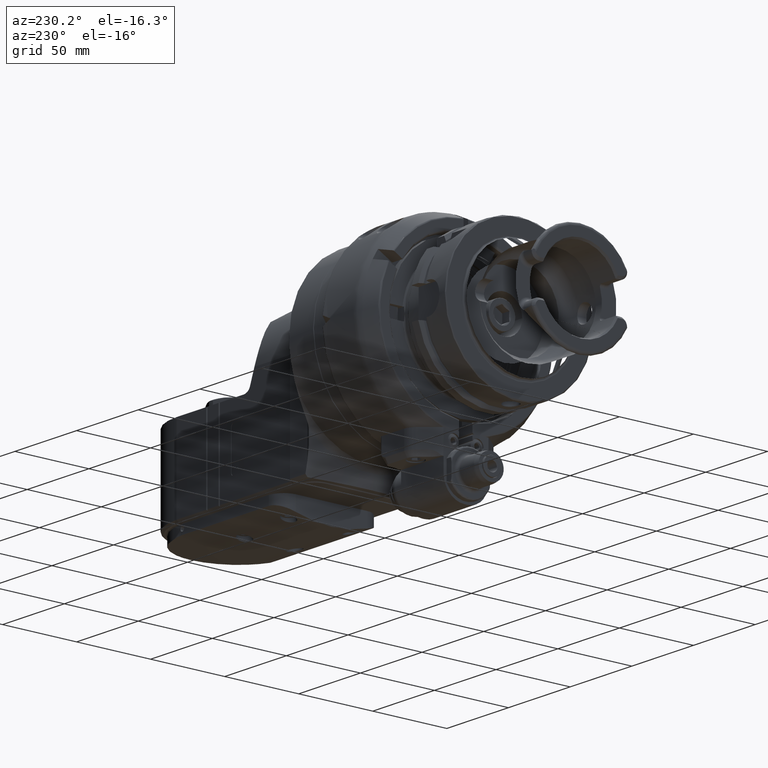
[diagram: clean part render]
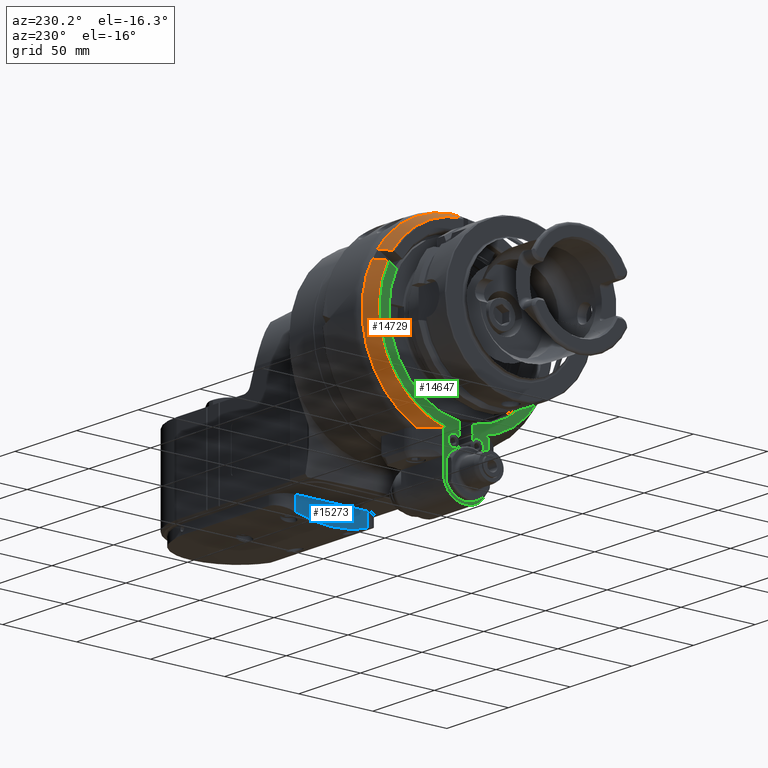
[diagram: same view with three faces highlighted in distinct colors, each labeled with its STEP entity id]
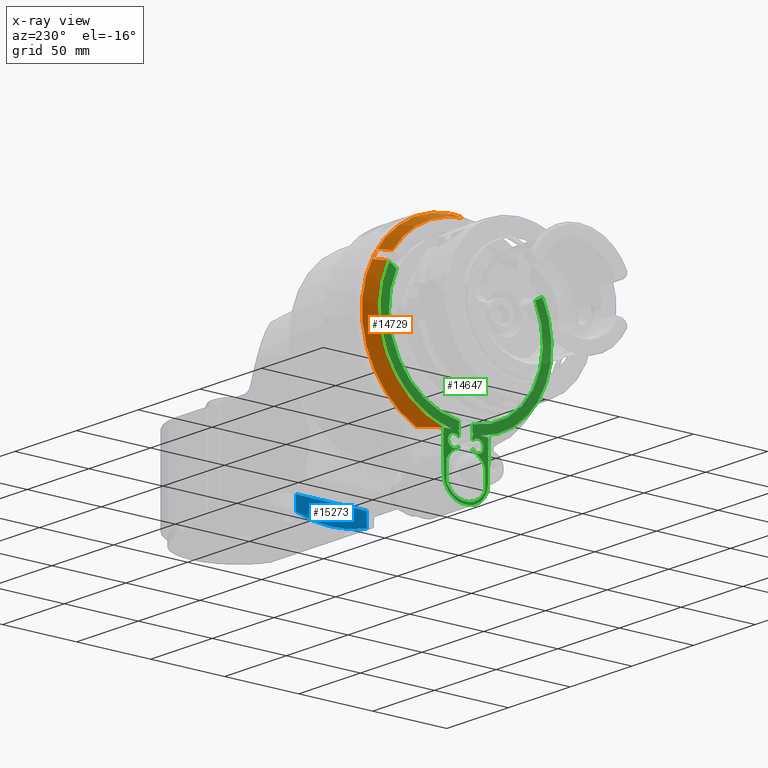
[diagram: x-ray of the same camera — body ghosted, the three highlighted faces saturated]
A machine part, auxiliary view with three faces highlighted in distinct colors.
The next image is the same camera in x-ray (body ghosted, the three faces saturated) — at least one of them is partly hidden behind the body in this view.
Their STEP definitions:

[orange] entity #14729 — the highlighted conical surface has half-angle 25 deg.
#106=B_SPLINE_CURVE_WITH_KNOTS('',3,(#23859,#23860,#23861,#23862,#23863,
#23864,#23865,#23866,#23867,#23868),.UNSPECIFIED.,.F.,.F.,(4,3,3,4),(1.02730984590457E-5,
0.3333333333333,0.6666666666667,1.),.UNSPECIFIED.);
#107=B_SPLINE_CURVE_WITH_KNOTS('',3,(#23876,#23877,#23878,#23879,#23880,
#23881,#23882,#23883,#23884,#23885),.UNSPECIFIED.,.F.,.F.,(4,1,1,1,1,1,
1,4),(0.,0.1428571428571,0.2857142857143,0.4285714285714,0.5714285714286,
0.7142857142857,0.8571428571429,1.),.UNSPECIFIED.);
#108=B_SPLINE_CURVE_WITH_KNOTS('',3,(#23888,#23889,#23890,#23891,#23892,
#23893,#23894,#23895,#23896,#23897),.UNSPECIFIED.,.F.,.F.,(4,3,3,4),(0.,
0.3333333333333,0.6666666666667,0.999989987187484),.UNSPECIFIED.);
#109=B_SPLINE_CURVE_WITH_KNOTS('',3,(#23901,#23902,#23903,#23904,#23905,
#23906,#23907,#23908,#23909,#23910),.UNSPECIFIED.,.F.,.F.,(4,3,3,4),(1.71057939529583E-6,
0.3333333333333,0.6666666666667,1.),.UNSPECIFIED.);
#110=B_SPLINE_CURVE_WITH_KNOTS('',3,(#23913,#23914,#23915,#23916,#23917,
#23918,#23919),.UNSPECIFIED.,.F.,.F.,(4,1,1,1,4),(0.,0.25,0.5,0.75,1.),
 .UNSPECIFIED.);
#417=CONICAL_SURFACE('',#15821,60.72877327237,0.436332312998582);
#3810=FACE_OUTER_BOUND('',#4674,.T.);
#4674=EDGE_LOOP('',(#10779,#10780,#10781,#10782,#10783,#10784,#10785,#10786,
#10787));
#5687=CIRCLE('',#15817,62.46361509432);
#5688=CIRCLE('',#15822,58.76923752623);
#5689=CIRCLE('',#15823,58.76923752623);
#5690=CIRCLE('',#15824,62.68830901851);
#6514=VERTEX_POINT('',#23842);
#6520=VERTEX_POINT('',#23854);
#6521=VERTEX_POINT('',#23858);
#6523=VERTEX_POINT('',#23874);
#6524=VERTEX_POINT('',#23875);
#6525=VERTEX_POINT('',#23887);
#6526=VERTEX_POINT('',#23898);
#6527=VERTEX_POINT('',#23900);
#6528=VERTEX_POINT('',#23911);
#8204=EDGE_CURVE('',#6520,#6514,#5687,.T.);
#8205=EDGE_CURVE('',#6521,#6514,#106,.T.);
#8209=EDGE_CURVE('',#6523,#6524,#107,.T.);
#8210=EDGE_CURVE('',#6521,#6523,#5688,.T.);
#8211=EDGE_CURVE('',#6520,#6525,#108,.T.);
#8212=EDGE_CURVE('',#6526,#6525,#5689,.T.);
#8213=EDGE_CURVE('',#6526,#6527,#109,.T.);
#8214=EDGE_CURVE('',#6528,#6527,#5690,.T.);
#8215=EDGE_CURVE('',#6524,#6528,#110,.T.);
#10779=ORIENTED_EDGE('',*,*,#8209,.F.);
#10780=ORIENTED_EDGE('',*,*,#8210,.F.);
#10781=ORIENTED_EDGE('',*,*,#8205,.T.);
#10782=ORIENTED_EDGE('',*,*,#8204,.F.);
#10783=ORIENTED_EDGE('',*,*,#8211,.T.);
#10784=ORIENTED_EDGE('',*,*,#8212,.F.);
#10785=ORIENTED_EDGE('',*,*,#8213,.T.);
#10786=ORIENTED_EDGE('',*,*,#8214,.F.);
#10787=ORIENTED_EDGE('',*,*,#8215,.F.);
#14729=ADVANCED_FACE('',(#3810),#417,.T.);
#15817=AXIS2_PLACEMENT_3D('',#23856,#17927,#17928);
#15821=AXIS2_PLACEMENT_3D('',#23873,#17936,#17937);
#15822=AXIS2_PLACEMENT_3D('',#23886,#17938,#17939);
#15823=AXIS2_PLACEMENT_3D('',#23899,#17940,#17941);
#15824=AXIS2_PLACEMENT_3D('',#23912,#17942,#17943);
#17927=DIRECTION('center_axis',(0.,1.,0.));
#17928=DIRECTION('ref_axis',(0.836648514801896,0.,0.547740141563298));
#17936=DIRECTION('center_axis',(0.,-1.,0.));
#17937=DIRECTION('ref_axis',(0.,0.,1.));
#17938=DIRECTION('center_axis',(0.,1.,0.));
#17939=DIRECTION('ref_axis',(0.894265716161126,0.,0.447536399523913));
#17940=DIRECTION('center_axis',(0.,1.,0.));
#17941=DIRECTION('ref_axis',(0.025523554657049,0.,0.99967422101286));
#17942=DIRECTION('center_axis',(0.,-1.,0.));
#17943=DIRECTION('ref_axis',(0.416227625267496,0.,-0.90926044891669));
#23842=CARTESIAN_POINT('',(55.76009079782,33.99999976923,28.15165154783));
#23854=CARTESIAN_POINT('',(52.26009079782,33.99999976923,34.21382937432));
#23856=CARTESIAN_POINT('Origin',(0.,33.99999976923,0.));
#23858=CARTESIAN_POINT('',(52.5553140756384,41.9226180914408,26.3013733606339));
#23859=CARTESIAN_POINT('Ctrl Pts',(52.5553143060926,41.9226180951775,26.3013729776423));
#23860=CARTESIAN_POINT('Ctrl Pts',(52.8974984834702,41.0767839762014,26.4989331045637));
#23861=CARTESIAN_POINT('Ctrl Pts',(53.2442676749145,40.2195859070401,26.6991403905907));
#23862=CARTESIAN_POINT('Ctrl Pts',(53.5956290017407,39.3510058627919,26.9019989472166));
#23863=CARTESIAN_POINT('Ctrl Pts',(53.9470011576093,38.4823990486934,27.1048637559931));
#23864=CARTESIAN_POINT('Ctrl Pts',(54.3029657319258,37.6024095579066,27.3103799987967));
#23865=CARTESIAN_POINT('Ctrl Pts',(54.6636907338381,36.7106214450431,27.5186446757542));
#23866=CARTESIAN_POINT('Ctrl Pts',(55.0244157357503,35.8188333321799,27.7269093527117));
#23867=CARTESIAN_POINT('Ctrl Pts',(55.3899011652583,34.91524659724,27.937922463823));
#23868=CARTESIAN_POINT('Ctrl Pts',(55.7600907978184,33.99999976923,28.1516515478328));
#23873=CARTESIAN_POINT('Origin',(0.,37.72038006238,0.));
#23874=CARTESIAN_POINT('',(14.31164838353,41.92261803015,-57.00000000004));
#23875=CARTESIAN_POINT('',(21.30096755004,37.460254874,-57.));
#23876=CARTESIAN_POINT('Ctrl Pts',(14.31164838353,41.92261803015,-57.00000000004));
#23877=CARTESIAN_POINT('Ctrl Pts',(14.62398115152,41.75950652187,-57.00000000004));
#23878=CARTESIAN_POINT('Ctrl Pts',(15.25413223333,41.42036479778,-56.99999999998));
#23879=CARTESIAN_POINT('Ctrl Pts',(16.21459806052,40.87241439357,-57.));
#23880=CARTESIAN_POINT('Ctrl Pts',(17.19207343771,40.28306634611,-57.));
#23881=CARTESIAN_POINT('Ctrl Pts',(18.18765909536,39.65037991353,-57.));
#23882=CARTESIAN_POINT('Ctrl Pts',(19.20277565445,38.97208999503,-57.));
#23883=CARTESIAN_POINT('Ctrl Pts',(20.2385662681,38.24599548139,-57.));
#23884=CARTESIAN_POINT('Ctrl Pts',(20.94447306891,37.72787483307,-57.));
#23885=CARTESIAN_POINT('Ctrl Pts',(21.30096755004,37.460254874,-57.));
#23886=CARTESIAN_POINT('Origin',(0.,41.92261803097,0.));
#23887=CARTESIAN_POINT('',(49.0553145156717,41.9226180899072,32.3635504238284));
#23888=CARTESIAN_POINT('Ctrl Pts',(52.2600907978213,33.99999976923,34.2138293743178));
#23889=CARTESIAN_POINT('Ctrl Pts',(51.8900419418814,34.91489854495,34.0001815677275));
#23890=CARTESIAN_POINT('Ctrl Pts',(51.5246502883267,35.8182534533199,33.789222598188));
#23891=CARTESIAN_POINT('Ctrl Pts',(51.1639706141339,36.7099295220631,33.5809840912014));
#23892=CARTESIAN_POINT('Ctrl Pts',(50.803290939941,37.6016055908066,33.3727455842147));
#23893=CARTESIAN_POINT('Ctrl Pts',(50.4473232451099,38.4816028199234,33.1672275397811));
#23894=CARTESIAN_POINT('Ctrl Pts',(50.0959038329956,39.3503264683419,32.9643354475983));
#23895=CARTESIAN_POINT('Ctrl Pts',(49.7444949769715,40.2190240216591,32.7614494499771));
#23896=CARTESIAN_POINT('Ctrl Pts',(49.3976341304217,41.0764486715492,32.5611892468501));
#23897=CARTESIAN_POINT('Ctrl Pts',(49.0553143054036,41.9226180935379,32.3635508037268));
#23898=CARTESIAN_POINT('',(1.49999981211714,41.9226180525519,58.7500917349531));
#23899=CARTESIAN_POINT('Origin',(0.,41.92261803097,0.));
#23900=CARTESIAN_POINT('',(1.49999987294062,33.5181468910144,62.670358284432));
#23901=CARTESIAN_POINT('Ctrl Pts',(1.499999846154,41.9226180526766,58.7500917352221));
#23902=CARTESIAN_POINT('Ctrl Pts',(1.499999846154,41.0144512778658,59.1737148646847));
#23903=CARTESIAN_POINT('Ctrl Pts',(1.499999846154,40.0977525072244,59.6013148391658));
#23904=CARTESIAN_POINT('Ctrl Pts',(1.499999846154,39.1725530480269,60.0328770844715));
#23905=CARTESIAN_POINT('Ctrl Pts',(1.499999846154,38.2473488409234,60.4644415444533));
#23906=CARTESIAN_POINT('Ctrl Pts',(1.499999846154,37.3136438580166,60.8999683159267));
#23907=CARTESIAN_POINT('Ctrl Pts',(1.499999846154,36.3712601978781,61.3395404066135));
#23908=CARTESIAN_POINT('Ctrl Pts',(1.499999846154,35.4288765377399,61.7791124973001));
#23909=CARTESIAN_POINT('Ctrl Pts',(1.499999846154,34.47781420037,62.2227299072));
#23910=CARTESIAN_POINT('Ctrl Pts',(1.499999846154,33.51815168744,62.67035604754));
#23911=CARTESIAN_POINT('',(26.09260599481,33.5181420938,-57.));
#23912=CARTESIAN_POINT('Origin',(0.,33.5181420938,0.));
#23913=CARTESIAN_POINT('Ctrl Pts',(21.30096755004,37.460254874,-57.));
#23914=CARTESIAN_POINT('Ctrl Pts',(21.68063562738,37.17523852538,-57.));
#23915=CARTESIAN_POINT('Ctrl Pts',(22.44996264181,36.58431619857,-57.));
#23916=CARTESIAN_POINT('Ctrl Pts',(23.63156942239,35.63490235576,-57.));
#23917=CARTESIAN_POINT('Ctrl Pts',(24.84368618236,34.61797838814,-57.));
#23918=CARTESIAN_POINT('Ctrl Pts',(25.67298005906,33.89270147253,-57.));
#23919=CARTESIAN_POINT('Ctrl Pts',(26.09260599481,33.5181420938,-57.));

[blue] entity #15273 — the highlighted planar face has unit normal (-1, 0, 0).
#1565=LINE('',#31039,#2732);
#1568=LINE('',#31052,#2735);
#1569=LINE('',#31055,#2736);
#2732=VECTOR('',#20769,48.);
#2735=VECTOR('',#20782,9.541400527585);
#2736=VECTOR('',#20785,9.541400527591);
#3591=PLANE('',#16833);
#4354=FACE_OUTER_BOUND('',#5321,.T.);
#5321=EDGE_LOOP('',(#13848,#13849,#13850,#13851));
#6139=CIRCLE('',#16834,85.);
#7583=VERTEX_POINT('',#31037);
#7584=VERTEX_POINT('',#31038);
#7589=VERTEX_POINT('',#31051);
#7590=VERTEX_POINT('',#31053);
#9711=EDGE_CURVE('',#7583,#7584,#1565,.T.);
#9718=EDGE_CURVE('',#7589,#7583,#1568,.T.);
#9719=EDGE_CURVE('',#7589,#7590,#6139,.T.);
#9720=EDGE_CURVE('',#7584,#7590,#1569,.T.);
#13848=ORIENTED_EDGE('',*,*,#9711,.F.);
#13849=ORIENTED_EDGE('',*,*,#9718,.F.);
#13850=ORIENTED_EDGE('',*,*,#9719,.T.);
#13851=ORIENTED_EDGE('',*,*,#9720,.F.);
#15273=ADVANCED_FACE('',(#4354),#3591,.T.);
#16833=AXIS2_PLACEMENT_3D('',#31050,#20780,#20781);
#16834=AXIS2_PLACEMENT_3D('',#31054,#20783,#20784);
#20769=DIRECTION('',(0.,0.,-1.));
#20780=DIRECTION('center_axis',(-1.,0.,0.));
#20781=DIRECTION('ref_axis',(0.,0.,-1.));
#20782=DIRECTION('',(0.,-1.,0.));
#20783=DIRECTION('center_axis',(-1.,0.,0.));
#20784=DIRECTION('ref_axis',(0.,0.959310594442168,0.28235294117649));
#20785=DIRECTION('',(0.,1.,-3.596873859133E-13));
#31037=CARTESIAN_POINT('',(68.5,70.5,24.));
#31038=CARTESIAN_POINT('',(68.5,70.5,-24.));
#31039=CARTESIAN_POINT('',(68.5,70.5,24.));
#31050=CARTESIAN_POINT('Origin',(68.5,70.5,36.5));
#31051=CARTESIAN_POINT('',(68.5,80.04140052758,24.));
#31052=CARTESIAN_POINT('',(68.5,80.04140052758,24.));
#31053=CARTESIAN_POINT('',(68.5,80.04140052759,-24.));
#31054=CARTESIAN_POINT('Origin',(68.5,-1.5,0.));
#31055=CARTESIAN_POINT('',(68.5,70.5,-24.));

[green] entity #14647 — the highlighted planar face has unit normal (1, -0, 0).
#629=LINE('',#22113,#1796);
#633=LINE('',#22125,#1800);
#635=LINE('',#22132,#1802);
#636=LINE('',#22136,#1803);
#637=LINE('',#22140,#1804);
#638=LINE('',#22142,#1805);
#639=LINE('',#22146,#1806);
#640=LINE('',#22148,#1807);
#641=LINE('',#22154,#1808);
#642=LINE('',#22158,#1809);
#643=LINE('',#22162,#1810);
#644=LINE('',#22164,#1811);
#645=LINE('',#22166,#1812);
#646=LINE('',#22168,#1813);
#647=LINE('',#22170,#1814);
#648=LINE('',#22172,#1815);
#649=LINE('',#22174,#1816);
#650=LINE('',#22178,#1817);
#651=LINE('',#22181,#1818);
#652=LINE('',#22183,#1819);
#653=LINE('',#22187,#1820);
#654=LINE('',#22191,#1821);
#655=LINE('',#22197,#1822);
#656=LINE('',#22199,#1823);
#657=LINE('',#22203,#1824);
#658=LINE('',#22204,#1825);
#1796=VECTOR('',#17431,0.1128483482606);
#1800=VECTOR('',#17445,9.5);
#1802=VECTOR('',#17451,12.84523257867);
#1803=VECTOR('',#17454,12.84523257867);
#1804=VECTOR('',#17457,0.7159512479098);
#1805=VECTOR('',#17458,0.3775010008008);
#1806=VECTOR('',#17461,0.3775010008008);
#1807=VECTOR('',#17462,2.5);
#1808=VECTOR('',#17467,4.195077453973);
#1809=VECTOR('',#17470,5.87481064190873);
#1810=VECTOR('',#17473,5.157013978268);
#1811=VECTOR('',#17474,15.5);
#1812=VECTOR('',#17475,0.1128483482606);
#1813=VECTOR('',#17476,0.7629679276389);
#1814=VECTOR('',#17477,10.);
#1815=VECTOR('',#17478,10.);
#1816=VECTOR('',#17479,8.70839142844);
#1817=VECTOR('',#17482,2.);
#1818=VECTOR('',#17485,15.5);
#1819=VECTOR('',#17486,5.157013978268);
#1820=VECTOR('',#17489,5.87482370131279);
#1821=VECTOR('',#17492,4.195077453972);
#1822=VECTOR('',#17497,2.5);
#1823=VECTOR('',#17498,0.3775010008008);
#1824=VECTOR('',#17501,0.3775010008008);
#1825=VECTOR('',#17502,0.7159512479098);
#3320=PLANE('',#15633);
#3728=FACE_OUTER_BOUND('',#4579,.T.);
#4579=EDGE_LOOP('',(#10343,#10344,#10345,#10346,#10347,#10348,#10349,#10350,
#10351,#10352,#10353,#10354,#10355,#10356,#10357,#10358,#10359,#10360,#10361,
#10362,#10363,#10364,#10365,#10366,#10367,#10368,#10369,#10370,#10371,#10372,
#10373,#10374,#10375,#10376,#10377,#10378,#10379,#10380,#10381,#10382,#10383));
#5584=CIRCLE('',#15634,14.5);
#5585=CIRCLE('',#15635,14.5);
#5586=CIRCLE('',#15636,14.5);
#5587=CIRCLE('',#15637,4.);
#5588=CIRCLE('',#15638,1.);
#5589=CIRCLE('',#15639,1.);
#5590=CIRCLE('',#15640,52.);
#5591=CIRCLE('',#15641,57.86292973919);
#5592=CIRCLE('',#15642,14.);
#5593=CIRCLE('',#15643,14.);
#5594=CIRCLE('',#15644,57.86292973919);
#5595=CIRCLE('',#15645,52.);
#5596=CIRCLE('',#15646,1.);
#5597=CIRCLE('',#15647,1.);
#5598=CIRCLE('',#15648,4.);
#6347=VERTEX_POINT('',#22110);
#6348=VERTEX_POINT('',#22112);
#6351=VERTEX_POINT('',#22124);
#6352=VERTEX_POINT('',#22128);
#6353=VERTEX_POINT('',#22129);
#6354=VERTEX_POINT('',#22131);
#6355=VERTEX_POINT('',#22133);
#6356=VERTEX_POINT('',#22135);
#6357=VERTEX_POINT('',#22137);
#6358=VERTEX_POINT('',#22139);
#6359=VERTEX_POINT('',#22141);
#6360=VERTEX_POINT('',#22143);
#6361=VERTEX_POINT('',#22145);
#6362=VERTEX_POINT('',#22147);
#6363=VERTEX_POINT('',#22149);
#6364=VERTEX_POINT('',#22151);
#6365=VERTEX_POINT('',#22153);
#6366=VERTEX_POINT('',#22155);
#6367=VERTEX_POINT('',#22157);
#6368=VERTEX_POINT('',#22159);
#6369=VERTEX_POINT('',#22161);
#6370=VERTEX_POINT('',#22163);
#6371=VERTEX_POINT('',#22165);
#6372=VERTEX_POINT('',#22167);
#6373=VERTEX_POINT('',#22169);
#6374=VERTEX_POINT('',#22171);
#6375=VERTEX_POINT('',#22173);
#6376=VERTEX_POINT('',#22175);
#6377=VERTEX_POINT('',#22177);
#6378=VERTEX_POINT('',#22180);
#6379=VERTEX_POINT('',#22182);
#6380=VERTEX_POINT('',#22184);
#6381=VERTEX_POINT('',#22186);
#6382=VERTEX_POINT('',#22188);
#6383=VERTEX_POINT('',#22190);
#6384=VERTEX_POINT('',#22192);
#6385=VERTEX_POINT('',#22194);
#6386=VERTEX_POINT('',#22196);
#6387=VERTEX_POINT('',#22198);
#6388=VERTEX_POINT('',#22200);
#6389=VERTEX_POINT('',#22202);
#7955=EDGE_CURVE('',#6348,#6347,#629,.T.);
#7961=EDGE_CURVE('',#6351,#6348,#633,.T.);
#7963=EDGE_CURVE('',#6352,#6353,#5584,.T.);
#7964=EDGE_CURVE('',#6354,#6352,#635,.T.);
#7965=EDGE_CURVE('',#6355,#6354,#5585,.T.);
#7966=EDGE_CURVE('',#6356,#6355,#636,.T.);
#7967=EDGE_CURVE('',#6357,#6356,#5586,.T.);
#7968=EDGE_CURVE('',#6357,#6358,#637,.T.);
#7969=EDGE_CURVE('',#6359,#6358,#638,.T.);
#7970=EDGE_CURVE('',#6359,#6360,#5587,.T.);
#7971=EDGE_CURVE('',#6361,#6360,#639,.T.);
#7972=EDGE_CURVE('',#6361,#6362,#640,.T.);
#7973=EDGE_CURVE('',#6362,#6363,#5588,.T.);
#7974=EDGE_CURVE('',#6363,#6364,#5589,.T.);
#7975=EDGE_CURVE('',#6365,#6364,#641,.T.);
#7976=EDGE_CURVE('',#6365,#6366,#5590,.T.);
#7977=EDGE_CURVE('',#6366,#6367,#642,.T.);
#7978=EDGE_CURVE('',#6367,#6368,#5591,.T.);
#7979=EDGE_CURVE('',#6368,#6369,#643,.T.);
#7980=EDGE_CURVE('',#6370,#6369,#644,.T.);
#7981=EDGE_CURVE('',#6370,#6371,#645,.T.);
#7982=EDGE_CURVE('',#6372,#6371,#646,.T.);
#7983=EDGE_CURVE('',#6372,#6373,#647,.T.);
#7984=EDGE_CURVE('',#6373,#6374,#648,.T.);
#7985=EDGE_CURVE('',#6375,#6374,#649,.T.);
#7986=EDGE_CURVE('',#6375,#6376,#5592,.T.);
#7987=EDGE_CURVE('',#6376,#6377,#650,.T.);
#7988=EDGE_CURVE('',#6377,#6351,#5593,.T.);
#7989=EDGE_CURVE('',#6378,#6347,#651,.T.);
#7990=EDGE_CURVE('',#6379,#6378,#652,.T.);
#7991=EDGE_CURVE('',#6379,#6380,#5594,.T.);
#7992=EDGE_CURVE('',#6380,#6381,#653,.T.);
#7993=EDGE_CURVE('',#6381,#6382,#5595,.T.);
#7994=EDGE_CURVE('',#6383,#6382,#654,.T.);
#7995=EDGE_CURVE('',#6383,#6384,#5596,.T.);
#7996=EDGE_CURVE('',#6384,#6385,#5597,.T.);
#7997=EDGE_CURVE('',#6385,#6386,#655,.T.);
#7998=EDGE_CURVE('',#6387,#6386,#656,.T.);
#7999=EDGE_CURVE('',#6387,#6388,#5598,.T.);
#8000=EDGE_CURVE('',#6389,#6388,#657,.T.);
#8001=EDGE_CURVE('',#6389,#6353,#658,.T.);
#10343=ORIENTED_EDGE('',*,*,#7963,.F.);
#10344=ORIENTED_EDGE('',*,*,#7964,.F.);
#10345=ORIENTED_EDGE('',*,*,#7965,.F.);
#10346=ORIENTED_EDGE('',*,*,#7966,.F.);
#10347=ORIENTED_EDGE('',*,*,#7967,.F.);
#10348=ORIENTED_EDGE('',*,*,#7968,.T.);
#10349=ORIENTED_EDGE('',*,*,#7969,.F.);
#10350=ORIENTED_EDGE('',*,*,#7970,.T.);
#10351=ORIENTED_EDGE('',*,*,#7971,.F.);
#10352=ORIENTED_EDGE('',*,*,#7972,.T.);
#10353=ORIENTED_EDGE('',*,*,#7973,.T.);
#10354=ORIENTED_EDGE('',*,*,#7974,.T.);
#10355=ORIENTED_EDGE('',*,*,#7975,.F.);
#10356=ORIENTED_EDGE('',*,*,#7976,.T.);
#10357=ORIENTED_EDGE('',*,*,#7977,.T.);
#10358=ORIENTED_EDGE('',*,*,#7978,.T.);
#10359=ORIENTED_EDGE('',*,*,#7979,.T.);
#10360=ORIENTED_EDGE('',*,*,#7980,.F.);
#10361=ORIENTED_EDGE('',*,*,#7981,.T.);
#10362=ORIENTED_EDGE('',*,*,#7982,.F.);
#10363=ORIENTED_EDGE('',*,*,#7983,.T.);
#10364=ORIENTED_EDGE('',*,*,#7984,.T.);
#10365=ORIENTED_EDGE('',*,*,#7985,.F.);
#10366=ORIENTED_EDGE('',*,*,#7986,.T.);
#10367=ORIENTED_EDGE('',*,*,#7987,.T.);
#10368=ORIENTED_EDGE('',*,*,#7988,.T.);
#10369=ORIENTED_EDGE('',*,*,#7961,.T.);
#10370=ORIENTED_EDGE('',*,*,#7955,.T.);
#10371=ORIENTED_EDGE('',*,*,#7989,.F.);
#10372=ORIENTED_EDGE('',*,*,#7990,.F.);
#10373=ORIENTED_EDGE('',*,*,#7991,.T.);
#10374=ORIENTED_EDGE('',*,*,#7992,.T.);
#10375=ORIENTED_EDGE('',*,*,#7993,.T.);
#10376=ORIENTED_EDGE('',*,*,#7994,.F.);
#10377=ORIENTED_EDGE('',*,*,#7995,.T.);
#10378=ORIENTED_EDGE('',*,*,#7996,.T.);
#10379=ORIENTED_EDGE('',*,*,#7997,.T.);
#10380=ORIENTED_EDGE('',*,*,#7998,.F.);
#10381=ORIENTED_EDGE('',*,*,#7999,.T.);
#10382=ORIENTED_EDGE('',*,*,#8000,.F.);
#10383=ORIENTED_EDGE('',*,*,#8001,.T.);
#14647=ADVANCED_FACE('',(#3728),#3320,.F.);
#15633=AXIS2_PLACEMENT_3D('',#22127,#17447,#17448);
#15634=AXIS2_PLACEMENT_3D('',#22130,#17449,#17450);
#15635=AXIS2_PLACEMENT_3D('',#22134,#17452,#17453);
#15636=AXIS2_PLACEMENT_3D('',#22138,#17455,#17456);
#15637=AXIS2_PLACEMENT_3D('',#22144,#17459,#17460);
#15638=AXIS2_PLACEMENT_3D('',#22150,#17463,#17464);
#15639=AXIS2_PLACEMENT_3D('',#22152,#17465,#17466);
#15640=AXIS2_PLACEMENT_3D('',#22156,#17468,#17469);
#15641=AXIS2_PLACEMENT_3D('',#22160,#17471,#17472);
#15642=AXIS2_PLACEMENT_3D('',#22176,#17480,#17481);
#15643=AXIS2_PLACEMENT_3D('',#22179,#17483,#17484);
#15644=AXIS2_PLACEMENT_3D('',#22185,#17487,#17488);
#15645=AXIS2_PLACEMENT_3D('',#22189,#17490,#17491);
#15646=AXIS2_PLACEMENT_3D('',#22193,#17493,#17494);
#15647=AXIS2_PLACEMENT_3D('',#22195,#17495,#17496);
#15648=AXIS2_PLACEMENT_3D('',#22201,#17499,#17500);
#17431=DIRECTION('',(-1.,0.,0.));
#17445=DIRECTION('',(0.,0.,1.));
#17447=DIRECTION('center_axis',(0.,-1.,0.));
#17448=DIRECTION('ref_axis',(0.,0.,1.));
#17449=DIRECTION('center_axis',(0.,1.,0.));
#17450=DIRECTION('ref_axis',(-0.896551724137936,0.,0.442939054436718));
#17451=DIRECTION('',(0.,0.,1.));
#17452=DIRECTION('center_axis',(0.,1.,0.));
#17453=DIRECTION('ref_axis',(0.896551724137936,0.,-0.442939054436718));
#17454=DIRECTION('',(0.,0.,-1.));
#17455=DIRECTION('center_axis',(0.,1.,0.));
#17456=DIRECTION('ref_axis',(0.310344827586198,0.,0.950624051868294));
#17457=DIRECTION('',(0.,0.,1.));
#17458=DIRECTION('',(-1.,0.,0.));
#17459=DIRECTION('center_axis',(0.,-1.,0.));
#17460=DIRECTION('ref_axis',(-0.7806247497998,0.,-0.625));
#17461=DIRECTION('',(1.,0.,0.));
#17462=DIRECTION('',(0.,0.,1.));
#17463=DIRECTION('center_axis',(0.,1.,0.));
#17464=DIRECTION('ref_axis',(-1.,0.,0.));
#17465=DIRECTION('center_axis',(0.,1.,0.));
#17466=DIRECTION('ref_axis',(-6.306066779871E-14,0.,-1.));
#17467=DIRECTION('',(0.,0.,-1.));
#17468=DIRECTION('center_axis',(0.,-1.,0.));
#17469=DIRECTION('ref_axis',(0.086538461538464,0.,-0.996248510500546));
#17470=DIRECTION('',(0.86602540378304,0.,0.500000000002423));
#17471=DIRECTION('center_axis',(0.,1.,0.));
#17472=DIRECTION('ref_axis',(0.894683546168776,0.,0.446700517365788));
#17473=DIRECTION('',(1.,0.,0.));
#17474=DIRECTION('',(0.,0.,1.));
#17475=DIRECTION('',(-1.,0.,0.));
#17476=DIRECTION('',(-3.073496587321E-9,-8.660976697957E-13,1.));
#17477=DIRECTION('',(-0.511857066365652,-1.95794482512405E-8,-0.859070627836587));
#17478=DIRECTION('',(0.988648123412767,0.,-0.150249419541024));
#17479=DIRECTION('',(0.,0.,1.));
#17480=DIRECTION('center_axis',(0.,1.,0.));
#17481=DIRECTION('ref_axis',(1.,0.,0.));
#17482=DIRECTION('',(-1.,0.,0.));
#17483=DIRECTION('center_axis',(0.,1.,0.));
#17484=DIRECTION('ref_axis',(0.,0.,-1.));
#17485=DIRECTION('',(0.,0.,-1.));
#17486=DIRECTION('',(-1.,0.,0.));
#17487=DIRECTION('center_axis',(0.,1.,0.));
#17488=DIRECTION('ref_axis',(-0.172058940237993,0.,-0.985086656636957));
#17489=DIRECTION('',(0.866025403783331,0.,-0.500000000001918));
#17490=DIRECTION('center_axis',(0.,-1.,0.));
#17491=DIRECTION('ref_axis',(-0.897715334658661,0.,0.440575961576081));
#17492=DIRECTION('',(0.,0.,1.));
#17493=DIRECTION('center_axis',(0.,1.,0.));
#17494=DIRECTION('ref_axis',(1.,0.,-4.973799150321E-14));
#17495=DIRECTION('center_axis',(0.,1.,0.));
#17496=DIRECTION('ref_axis',(8.437694987151E-14,0.,1.));
#17497=DIRECTION('',(0.,0.,-1.));
#17498=DIRECTION('',(1.,0.,0.));
#17499=DIRECTION('center_axis',(0.,-1.,0.));
#17500=DIRECTION('ref_axis',(0.7806247497998,0.,0.625));
#17501=DIRECTION('',(-1.,0.,0.));
#17502=DIRECTION('',(0.,0.,-1.));
#22110=CARTESIAN_POINT('',(-15.11284834826,42.49999976923,-72.5));
#22112=CARTESIAN_POINT('',(-15.,42.49999976923,-72.5));
#22113=CARTESIAN_POINT('',(-15.,42.49999976923,-72.5));
#22124=CARTESIAN_POINT('',(-15.,42.49999976923,-82.));
#22125=CARTESIAN_POINT('',(-15.,42.49999976923,-82.));
#22127=CARTESIAN_POINT('Origin',(0.,42.49999976923,-55.75));
#22128=CARTESIAN_POINT('',(-13.,42.49999976923,-73.57738371067));
#22129=CARTESIAN_POINT('',(-4.5,42.49999976923,-66.21595124791));
#22130=CARTESIAN_POINT('Origin',(0.,42.49999976923,-80.));
#22131=CARTESIAN_POINT('',(-13.,42.49999976923,-86.42261628933));
#22132=CARTESIAN_POINT('',(-13.,42.49999976923,-86.42261628933));
#22133=CARTESIAN_POINT('',(13.,42.49999976923,-86.42261628933));
#22134=CARTESIAN_POINT('Origin',(0.,42.49999976923,-80.));
#22135=CARTESIAN_POINT('',(13.,42.49999976923,-73.57738371067));
#22136=CARTESIAN_POINT('',(13.,42.49999976923,-73.57738371067));
#22137=CARTESIAN_POINT('',(4.5,42.49999976923,-66.21595124791));
#22138=CARTESIAN_POINT('Origin',(0.,42.49999976923,-80.));
#22139=CARTESIAN_POINT('',(4.5,42.49999976923,-65.5));
#22140=CARTESIAN_POINT('',(4.5,42.49999976923,-66.21595124791));
#22141=CARTESIAN_POINT('',(4.877501000801,42.49999976923,-65.5));
#22142=CARTESIAN_POINT('',(4.877501000801,42.49999976923,-65.5));
#22143=CARTESIAN_POINT('',(4.877501000801,42.49999976923,-60.5));
#22144=CARTESIAN_POINT('Origin',(8.,42.49999976923,-63.));
#22145=CARTESIAN_POINT('',(4.5,42.49999976923,-60.5));
#22146=CARTESIAN_POINT('',(4.5,42.49999976923,-60.5));
#22147=CARTESIAN_POINT('',(4.5,42.49999976923,-58.));
#22148=CARTESIAN_POINT('',(4.5,42.49999976923,-60.5));
#22149=CARTESIAN_POINT('',(5.5,42.49999976923,-57.));
#22150=CARTESIAN_POINT('Origin',(5.5,42.49999976923,-58.));
#22151=CARTESIAN_POINT('',(4.5,42.49999976923,-56.));
#22152=CARTESIAN_POINT('Origin',(5.5,42.49999976923,-56.));
#22153=CARTESIAN_POINT('',(4.5,42.49999976923,-51.80492254603));
#22154=CARTESIAN_POINT('',(4.5,42.49999976923,-51.80492254603));
#22155=CARTESIAN_POINT('',(46.68119740225,42.49999976923,22.90995000196));
#22156=CARTESIAN_POINT('Origin',(0.,42.49999976923,0.));
#22157=CARTESIAN_POINT('',(51.7690111463578,42.499999769225,25.8474006346634));
#22158=CARTESIAN_POINT('',(46.68119740225,42.49999976923,22.90995000196));
#22159=CARTESIAN_POINT('',(9.955834369993,42.49999976923,-57.));
#22160=CARTESIAN_POINT('Origin',(0.,42.49999976923,0.));
#22161=CARTESIAN_POINT('',(15.11284834826,42.49999976923,-57.));
#22162=CARTESIAN_POINT('',(9.955834369993,42.49999976923,-57.));
#22163=CARTESIAN_POINT('',(15.11284834826,42.49999976923,-72.5));
#22164=CARTESIAN_POINT('',(15.11284834826,42.49999976923,-72.5));
#22165=CARTESIAN_POINT('',(15.,42.49999976923,-72.5));
#22166=CARTESIAN_POINT('',(15.11284834826,42.49999976923,-72.5));
#22167=CARTESIAN_POINT('',(15.0000000030541,42.4999997694296,-73.2629679283757));
#22168=CARTESIAN_POINT('',(15.00000000234,42.49999976923,-73.26296792764));
#22169=CARTESIAN_POINT('',(14.98435207752,42.49999976923,-73.28923048454));
#22170=CARTESIAN_POINT('',(15.0000000046865,42.4999997698287,-73.2629679290382));
#22171=CARTESIAN_POINT('',(15.,42.49999976923,-73.29160857156));
#22172=CARTESIAN_POINT('',(14.98435207752,42.49999976923,-73.28923048454));
#22173=CARTESIAN_POINT('',(15.,42.49999976923,-82.));
#22174=CARTESIAN_POINT('',(15.,42.49999976923,-82.));
#22175=CARTESIAN_POINT('',(1.,42.49999976923,-96.));
#22176=CARTESIAN_POINT('Origin',(1.,42.49999976923,-82.));
#22177=CARTESIAN_POINT('',(-1.,42.49999976923,-96.));
#22178=CARTESIAN_POINT('',(1.,42.49999976923,-96.));
#22179=CARTESIAN_POINT('Origin',(-1.,42.49999976923,-82.));
#22180=CARTESIAN_POINT('',(-15.11284834826,42.49999976923,-57.));
#22181=CARTESIAN_POINT('',(-15.11284834826,42.49999976923,-57.));
#22182=CARTESIAN_POINT('',(-9.955834369993,42.49999976923,-57.));
#22183=CARTESIAN_POINT('',(-9.955834369993,42.49999976923,-57.));
#22184=CARTESIAN_POINT('',(-51.7690111498771,42.4999997692258,25.8474006369835));
#22185=CARTESIAN_POINT('Origin',(0.,42.49999976923,0.));
#22186=CARTESIAN_POINT('',(-46.68119740225,42.49999976923,22.90995000196));
#22187=CARTESIAN_POINT('',(-51.76894397034,42.49999976923,25.84736185262));
#22188=CARTESIAN_POINT('',(-4.5,42.49999976923,-51.80492254603));
#22189=CARTESIAN_POINT('Origin',(0.,42.49999976923,0.));
#22190=CARTESIAN_POINT('',(-4.5,42.49999976923,-56.));
#22191=CARTESIAN_POINT('',(-4.5,42.49999976923,-56.));
#22192=CARTESIAN_POINT('',(-5.5,42.49999976923,-57.));
#22193=CARTESIAN_POINT('Origin',(-5.5,42.49999976923,-56.));
#22194=CARTESIAN_POINT('',(-4.5,42.49999976923,-58.));
#22195=CARTESIAN_POINT('Origin',(-5.5,42.49999976923,-58.));
#22196=CARTESIAN_POINT('',(-4.5,42.49999976923,-60.5));
#22197=CARTESIAN_POINT('',(-4.5,42.49999976923,-58.));
#22198=CARTESIAN_POINT('',(-4.877501000801,42.49999976923,-60.5));
#22199=CARTESIAN_POINT('',(-4.877501000801,42.49999976923,-60.5));
#22200=CARTESIAN_POINT('',(-4.877501000801,42.49999976923,-65.5));
#22201=CARTESIAN_POINT('Origin',(-8.,42.49999976923,-63.));
#22202=CARTESIAN_POINT('',(-4.5,42.49999976923,-65.5));
#22203=CARTESIAN_POINT('',(-4.5,42.49999976923,-65.5));
#22204=CARTESIAN_POINT('',(-4.5,42.49999976923,-65.5));